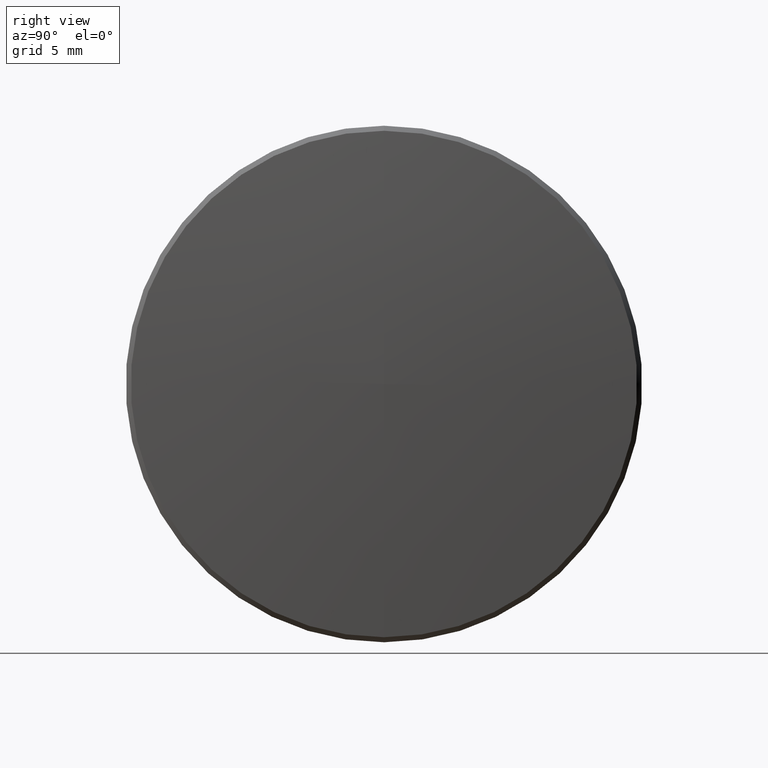
[diagram: clean part render]
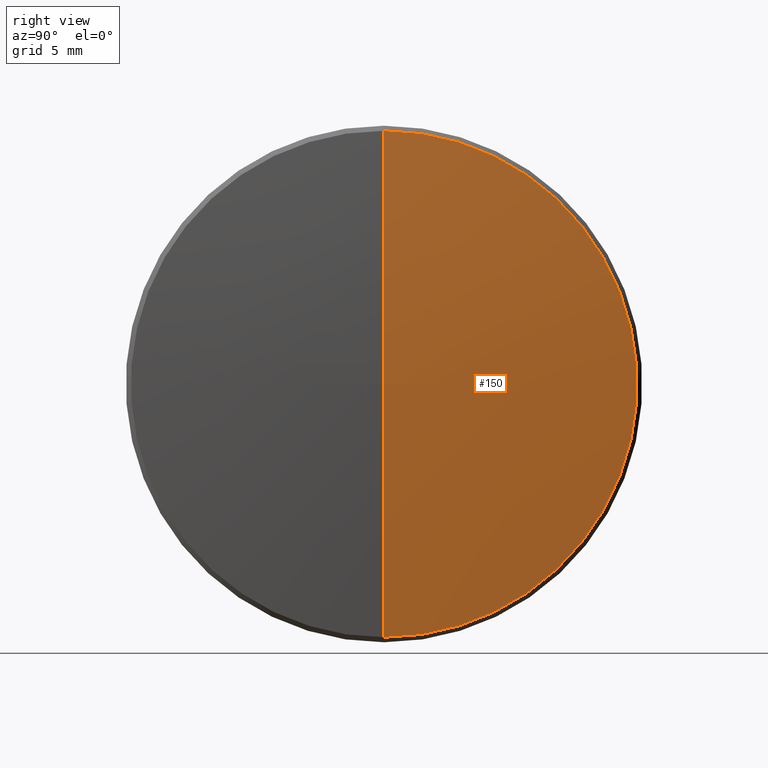
[diagram: same view with one face highlighted and labeled with its STEP entity id]
A machine part, right view. The second image highlights one B-rep face of the part: STEP entity #150.
In plain terms, the highlighted toroidal blend (fillet) surface has major radius 0.1555 mm and minor (blend) radius 138 mm.
Its self-contained STEP definition (entity closure, byte-faithful):
#3 = CARTESIAN_POINT ( 'NONE',  ( 1.300000000000000000, 0.0000000000000000000, 0.0000000000000000000 ) ) ;
#5 = ORIENTED_EDGE ( 'NONE', *, *, #170, .F. ) ;
#20 = DIRECTION ( 'NONE',  ( 1.000000000000000000, 0.0000000000000000000, 0.0000000000000000000 ) ) ;
#21 = AXIS2_PLACEMENT_3D ( 'NONE', #143, #232, #63 ) ;
#27 = DIRECTION ( 'NONE',  ( -0.0000000000000000000, 1.000000000000000000, 1.224646799147353200E-016 ) ) ;
#39 = AXIS2_PLACEMENT_3D ( 'NONE', #274, #250, #176 ) ;
#51 = AXIS2_PLACEMENT_3D ( 'NONE', #175, #20, #137 ) ;
#58 = DIRECTION ( 'NONE',  ( 0.0000000000000000000, -1.224646799147353200E-016, 1.000000000000000000 ) ) ;
#63 = DIRECTION ( 'NONE',  ( 0.0000000000000000000, 0.0000000000000000000, -1.000000000000000000 ) ) ;
#70 = TOROIDAL_SURFACE ( 'NONE', #39, -0.1555076715776112800, 138.0000000000000000 ) ;
#73 = EDGE_LOOP ( 'NONE', ( #5, #192, #160 ) ) ;
#76 = CIRCLE ( 'NONE', #21, 138.0000000000000000 ) ;
#99 = AXIS2_PLACEMENT_3D ( 'NONE', #242, #27, #58 ) ;
#115 = VERTEX_POINT ( 'NONE', #3 ) ;
#120 = EDGE_CURVE ( 'NONE', #115, #206, #172, .T. ) ;
#134 = CARTESIAN_POINT ( 'NONE',  ( 0.7230408307691560400, 0.0000000000000000000, 12.45131311545400300 ) ) ;
#137 = DIRECTION ( 'NONE',  ( 0.0000000000000000000, 0.0000000000000000000, 1.000000000000000000 ) ) ;
#143 = CARTESIAN_POINT ( 'NONE',  ( -136.6999123817261400, 0.0000000000000000000, -0.1555076715776112800 ) ) ;
#150 = ADVANCED_FACE ( 'NONE', ( #229 ), #70, .T. ) ;
#158 = EDGE_CURVE ( 'NONE', #206, #247, #275, .T. ) ;
#160 = ORIENTED_EDGE ( 'NONE', *, *, #158, .T. ) ;
#170 = EDGE_CURVE ( 'NONE', #115, #247, #76, .T. ) ;
#172 = CIRCLE ( 'NONE', #99, 138.0000000000000000 ) ;
#175 = CARTESIAN_POINT ( 'NONE',  ( 0.7230408307691560400, 0.0000000000000000000, 0.0000000000000000000 ) ) ;
#176 = DIRECTION ( 'NONE',  ( 0.0000000000000000000, 0.0000000000000000000, 1.000000000000000000 ) ) ;
#192 = ORIENTED_EDGE ( 'NONE', *, *, #120, .T. ) ;
#206 = VERTEX_POINT ( 'NONE', #258 ) ;
#229 = FACE_OUTER_BOUND ( 'NONE', #73, .T. ) ;
#232 = DIRECTION ( 'NONE',  ( 0.0000000000000000000, -1.000000000000000000, 0.0000000000000000000 ) ) ;
#242 = CARTESIAN_POINT ( 'NONE',  ( -136.6999123817261400, -1.904419722403794800E-017, 0.1555076715776112800 ) ) ;
#247 = VERTEX_POINT ( 'NONE', #134 ) ;
#250 = DIRECTION ( 'NONE',  ( -1.000000000000000000, -0.0000000000000000000, -0.0000000000000000000 ) ) ;
#258 = CARTESIAN_POINT ( 'NONE',  ( 0.7230408307691560400, 1.524846075202220200E-015, -12.45131311545400300 ) ) ;
#274 = CARTESIAN_POINT ( 'NONE',  ( -136.6999123817261400, 0.0000000000000000000, 0.0000000000000000000 ) ) ;
#275 = CIRCLE ( 'NONE', #51, 12.45131311545390700 ) ;